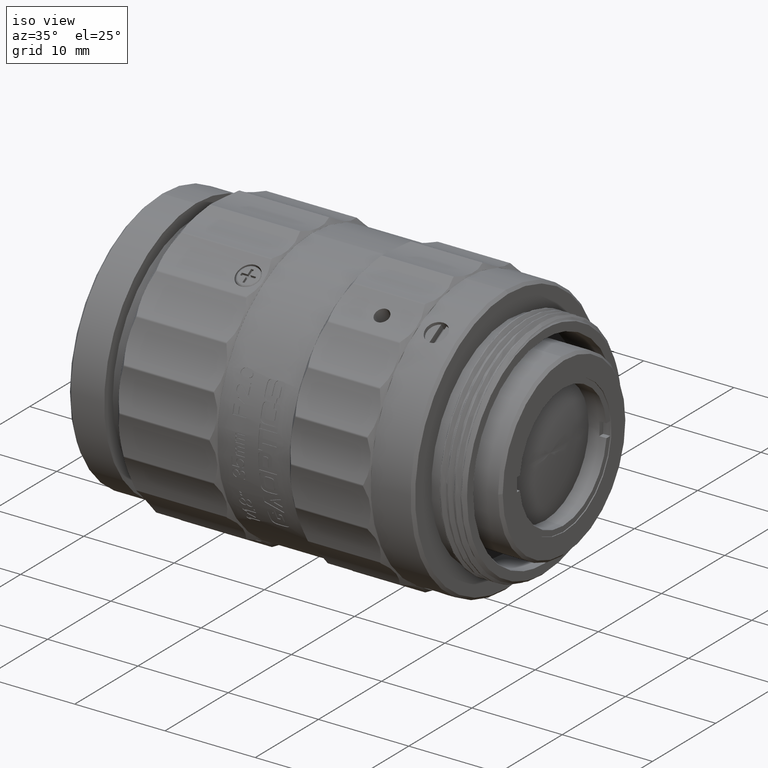
[diagram: clean part render]
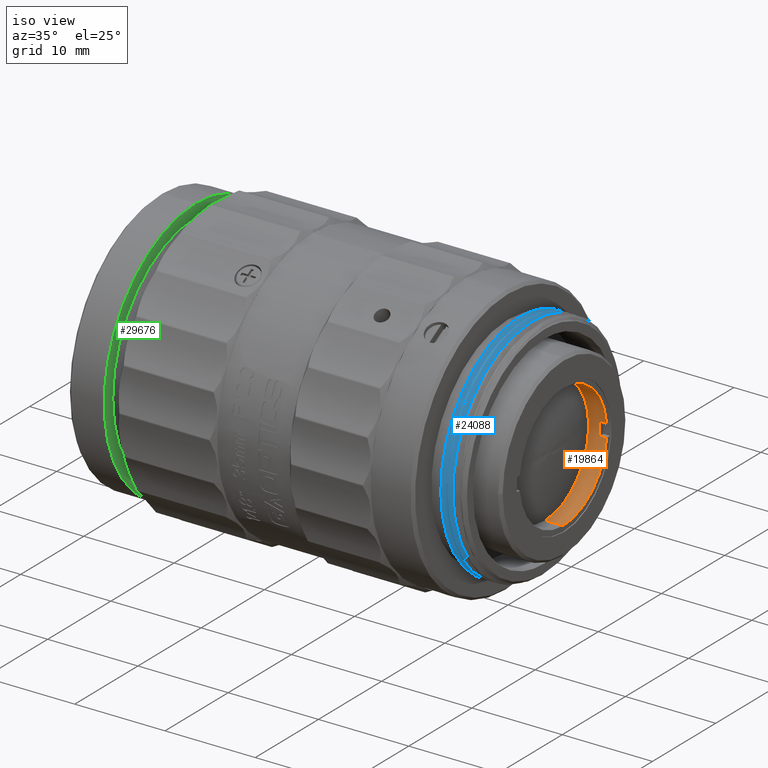
[diagram: same view with three faces highlighted in distinct colors, each labeled with its STEP entity id]
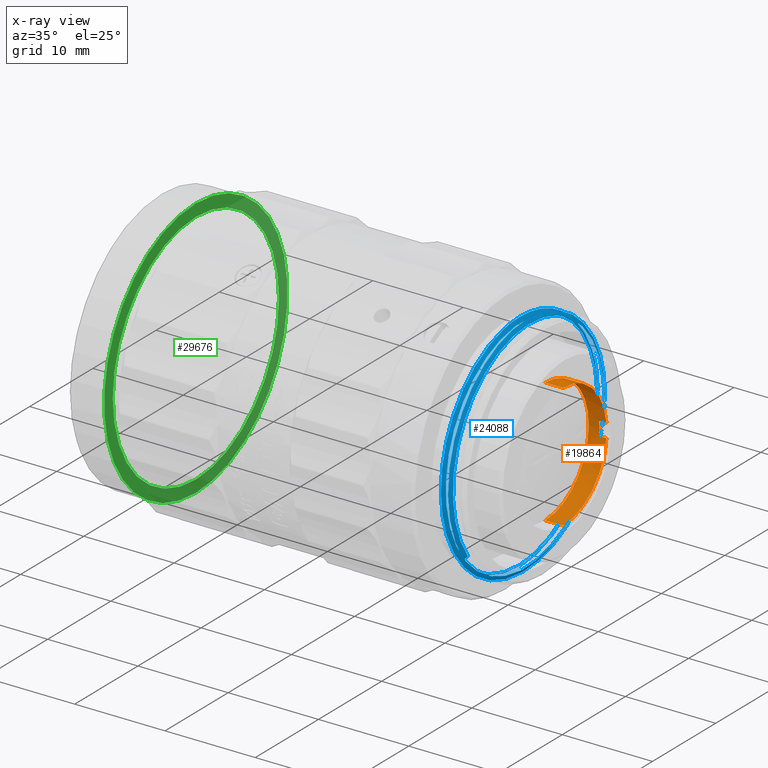
[diagram: x-ray of the same camera — body ghosted, the three highlighted faces saturated]
A machine part, iso view with three faces highlighted in distinct colors.
The next image is the same camera in x-ray (body ghosted, the three faces saturated) — at least one of them is partly hidden behind the body in this view.
Their STEP definitions:

[orange] entity #19864 — the highlighted cylindrical surface (partial cylindrical patch) has radius 6.9 mm, axis along (1, -0, 0).
#409 = CARTESIAN_POINT ( 'NONE',  ( 6.099999999999999645, 6.859118019104204933, 0.7500000000000109912 ) ) ;
#1989 = CIRCLE ( 'NONE', #14489, 6.900000000000001243 ) ;
#4546 = EDGE_CURVE ( 'NONE', #49021, #65725, #36204, .T. ) ;
#4587 = EDGE_CURVE ( 'NONE', #73823, #8742, #46218, .T. ) ;
#5099 = CARTESIAN_POINT ( 'NONE',  ( 4.099999999999999645, 8.450062914116738633E-16, 6.900000000000001243 ) ) ;
#6017 = DIRECTION ( 'NONE',  ( -1.000000000000000000, 0.000000000000000000, -0.000000000000000000 ) ) ;
#7153 = DIRECTION ( 'NONE',  ( -1.000000000000000000, 0.000000000000000000, -0.000000000000000000 ) ) ;
#7229 = CARTESIAN_POINT ( 'NONE',  ( 5.299999999999999822, 0.000000000000000000, 0.000000000000000000 ) ) ;
#7729 = DIRECTION ( 'NONE',  ( 1.000000000000000000, -0.000000000000000000, 0.000000000000000000 ) ) ;
#8439 = CIRCLE ( 'NONE', #57199, 6.900000000000073186 ) ;
#8742 = VERTEX_POINT ( 'NONE', #65185 ) ;
#11123 = DIRECTION ( 'NONE',  ( 0.000000000000000000, -1.776356839400250465E-15, -1.000000000000000000 ) ) ;
#12277 = EDGE_CURVE ( 'NONE', #37044, #44721, #20781, .T. ) ;
#12364 = CARTESIAN_POINT ( 'NONE',  ( 5.299999999999999822, 6.859118019104204933, 0.7500000000000109912 ) ) ;
#14489 = AXIS2_PLACEMENT_3D ( 'NONE', #7229, #31122, #53451 ) ;
#14518 = CIRCLE ( 'NONE', #24550, 6.900000000000001243 ) ;
#15675 = CARTESIAN_POINT ( 'NONE',  ( 6.099999999999999645, 8.450062914116738633E-16, 6.900000000000001243 ) ) ;
#16380 = CARTESIAN_POINT ( 'NONE',  ( 6.099999999999999645, 0.000000000000000000, -6.900000000000001243 ) ) ;
#17411 = AXIS2_PLACEMENT_3D ( 'NONE', #25987, #36164, #25214 ) ;
#18951 = ORIENTED_EDGE ( 'NONE', *, *, #42799, .F. ) ;
#19864 = ADVANCED_FACE ( 'NONE', ( #46336 ), #65092, .F. ) ;
#20781 = LINE ( 'NONE', #26289, #32112 ) ;
#22066 = DIRECTION ( 'NONE',  ( 1.000000000000000000, -0.000000000000000000, 0.000000000000000000 ) ) ;
#22907 = ORIENTED_EDGE ( 'NONE', *, *, #37177, .F. ) ;
#23371 = VERTEX_POINT ( 'NONE', #60708 ) ;
#23622 = DIRECTION ( 'NONE',  ( 0.000000000000000000, 0.000000000000000000, -1.000000000000000000 ) ) ;
#23733 = EDGE_CURVE ( 'NONE', #8742, #65725, #43372, .T. ) ;
#23846 = VECTOR ( 'NONE', #39600, 1000.000000000000000 ) ;
#24550 = AXIS2_PLACEMENT_3D ( 'NONE', #61549, #7153, #25563 ) ;
#25044 = ORIENTED_EDGE ( 'NONE', *, *, #31496, .F. ) ;
#25214 = DIRECTION ( 'NONE',  ( -5.028183988338518183E-16, -1.000000000000000000, 0.000000000000000000 ) ) ;
#25563 = DIRECTION ( 'NONE',  ( 0.000000000000000000, 0.000000000000000000, -1.000000000000000000 ) ) ;
#25987 = CARTESIAN_POINT ( 'NONE',  ( 4.100000000000457057, 0.000000000000000000, 0.000000000000000000 ) ) ;
#26289 = CARTESIAN_POINT ( 'NONE',  ( 5.099999999999999645, 6.859118019104203157, 0.7500000000000218714 ) ) ;
#26673 = DIRECTION ( 'NONE',  ( -1.000000000000000000, -0.000000000000000000, -0.000000000000000000 ) ) ;
#27454 = LINE ( 'NONE', #5099, #23846 ) ;
#29101 = ORIENTED_EDGE ( 'NONE', *, *, #63841, .T. ) ;
#31122 = DIRECTION ( 'NONE',  ( -1.000000000000000000, 0.000000000000000000, -0.000000000000000000 ) ) ;
#31496 = EDGE_CURVE ( 'NONE', #51234, #37044, #14518, .T. ) ;
#31961 = VECTOR ( 'NONE', #59023, 1000.000000000000000 ) ;
#32112 = VECTOR ( 'NONE', #26673, 1000.000000000000000 ) ;
#33365 = AXIS2_PLACEMENT_3D ( 'NONE', #76862, #22066, #23622 ) ;
#34644 = CARTESIAN_POINT ( 'NONE',  ( 6.099999999999999645, 6.859118019104204933, -0.7500000000000117684 ) ) ;
#35134 = CARTESIAN_POINT ( 'NONE',  ( 5.099999999999999645, 6.859118019104203157, -0.7500000000000235367 ) ) ;
#36164 = DIRECTION ( 'NONE',  ( -1.000000000000000000, -0.000000000000000000, -0.000000000000000000 ) ) ;
#36204 = CIRCLE ( 'NONE', #74968, 6.900000000000001243 ) ;
#37044 = VERTEX_POINT ( 'NONE', #409 ) ;
#37177 = EDGE_CURVE ( 'NONE', #23371, #49021, #72306, .T. ) ;
#37457 = ORIENTED_EDGE ( 'NONE', *, *, #59466, .F. ) ;
#39600 = DIRECTION ( 'NONE',  ( 1.000000000000000000, -0.000000000000000000, 0.000000000000000000 ) ) ;
#41332 = DIRECTION ( 'NONE',  ( -1.000000000000000000, -0.000000000000000000, -0.000000000000000000 ) ) ;
#42403 = EDGE_LOOP ( 'NONE', ( #18951, #29101, #61014, #74935, #50491, #22907, #37457, #47820, #25044 ) ) ;
#42799 = EDGE_CURVE ( 'NONE', #54396, #51234, #27454, .T. ) ;
#43372 = LINE ( 'NONE', #67244, #56384 ) ;
#44721 = VERTEX_POINT ( 'NONE', #12364 ) ;
#46218 = CIRCLE ( 'NONE', #17411, 6.900000000000073186 ) ;
#46336 = FACE_OUTER_BOUND ( 'NONE', #42403, .T. ) ;
#47820 = ORIENTED_EDGE ( 'NONE', *, *, #12277, .F. ) ;
#49021 = VERTEX_POINT ( 'NONE', #34644 ) ;
#50491 = ORIENTED_EDGE ( 'NONE', *, *, #4546, .F. ) ;
#51234 = VERTEX_POINT ( 'NONE', #15675 ) ;
#53451 = DIRECTION ( 'NONE',  ( 0.000000000000000000, 4.440892098500626162E-15, -1.000000000000000000 ) ) ;
#54236 = DIRECTION ( 'NONE',  ( -5.028183988338518183E-16, -1.000000000000000000, 0.000000000000000000 ) ) ;
#54396 = VERTEX_POINT ( 'NONE', #68151 ) ;
#56384 = VECTOR ( 'NONE', #7729, 1000.000000000000000 ) ;
#57199 = AXIS2_PLACEMENT_3D ( 'NONE', #66365, #41332, #54236 ) ;
#58266 = CARTESIAN_POINT ( 'NONE',  ( 4.100000000000457057, 6.900000000000073186, -8.450062914116825408E-16 ) ) ;
#59023 = DIRECTION ( 'NONE',  ( 1.000000000000000000, 0.000000000000000000, 0.000000000000000000 ) ) ;
#59466 = EDGE_CURVE ( 'NONE', #44721, #23371, #1989, .T. ) ;
#60708 = CARTESIAN_POINT ( 'NONE',  ( 5.300000000000000711, 6.859118019104204933, -0.7500000000000117684 ) ) ;
#61014 = ORIENTED_EDGE ( 'NONE', *, *, #4587, .T. ) ;
#61549 = CARTESIAN_POINT ( 'NONE',  ( 6.099999999999999645, 0.000000000000000000, 0.000000000000000000 ) ) ;
#63841 = EDGE_CURVE ( 'NONE', #54396, #73823, #8439, .T. ) ;
#65092 = CYLINDRICAL_SURFACE ( 'NONE', #33365, 6.900000000000001243 ) ;
#65185 = CARTESIAN_POINT ( 'NONE',  ( 4.100000000000457057, 0.000000000000000000, -6.900000000000072298 ) ) ;
#65725 = VERTEX_POINT ( 'NONE', #16380 ) ;
#66365 = CARTESIAN_POINT ( 'NONE',  ( 4.100000000000457057, 0.000000000000000000, 0.000000000000000000 ) ) ;
#67244 = CARTESIAN_POINT ( 'NONE',  ( 4.099999999999999645, 0.000000000000000000, -6.900000000000001243 ) ) ;
#68151 = CARTESIAN_POINT ( 'NONE',  ( 4.100000000000457057, 8.450062914116825408E-16, 6.900000000000072298 ) ) ;
#70637 = CARTESIAN_POINT ( 'NONE',  ( 6.099999999999999645, 0.000000000000000000, 0.000000000000000000 ) ) ;
#72306 = LINE ( 'NONE', #35134, #31961 ) ;
#73823 = VERTEX_POINT ( 'NONE', #58266 ) ;
#74935 = ORIENTED_EDGE ( 'NONE', *, *, #23733, .T. ) ;
#74968 = AXIS2_PLACEMENT_3D ( 'NONE', #70637, #6017, #11123 ) ;
#76862 = CARTESIAN_POINT ( 'NONE',  ( 4.099999999999999645, 0.000000000000000000, 0.000000000000000000 ) ) ;

[blue] entity #24088 — the highlighted face is a freeform B-spline surface patch.
#4 = CARTESIAN_POINT ( 'NONE',  ( 1.147177800774000112, 2.475392689828999959, -12.31298199855999975 ) ) ;
#821 = CARTESIAN_POINT ( 'NONE',  ( 2.005554517069075171, 3.324198125848132346, 12.36945299433578604 ) ) ;
#1213 = CARTESIAN_POINT ( 'NONE',  ( 1.244785915738939153, -1.291658214993352059E-06, 12.69990260965797901 ) ) ;
#1254 = CARTESIAN_POINT ( 'NONE',  ( 0.6946685632918000453, -10.78043694788000195, -6.798454218829999007 ) ) ;
#1638 = CARTESIAN_POINT ( 'NONE',  ( 2.269707254204000435, -11.70889297097999915, -5.859656244205999620 ) ) ;
#2025 = CARTESIAN_POINT ( 'NONE',  ( 2.237046959761878728, -12.69997868697718424, -6.665826899113979130E-07 ) ) ;
#2071 = EDGE_CURVE ( 'NONE', #71857, #61550, #17913, .T. ) ;
#2420 = CARTESIAN_POINT ( 'NONE',  ( 1.456784058894999845, -12.46029294280999800, -4.021946059873999779 ) ) ;
#2439 = CARTESIAN_POINT ( 'NONE',  ( 1.020029718032617883, 12.47229344561765885, -2.609337535754476356 ) ) ;
#2818 = CARTESIAN_POINT ( 'NONE',  ( 0.8978993621191998509, 7.399307099672000732, -10.80209534890000356 ) ) ;
#3131 = CARTESIAN_POINT ( 'NONE',  ( 2.187791431660296215, 8.870203314956022211, 8.957489581333527795 ) ) ;
#3200 = CARTESIAN_POINT ( 'NONE',  ( 1.912466669629999894, 12.91404881849999953, -0.1817822703328999812 ) ) ;
#3221 = CARTESIAN_POINT ( 'NONE',  ( 1.193597821671151582, 5.009681758521558947, 11.71510882892911631 ) ) ;
#3233 = CARTESIAN_POINT ( 'NONE',  ( 1.000000000000000888, 10.65908170437654157, -6.842019221050800404 ) ) ;
#3590 = CARTESIAN_POINT ( 'NONE',  ( 1.302774273146999784, 1.647423259653999716, 12.80982819104000292 ) ) ;
#3605 = CARTESIAN_POINT ( 'NONE',  ( 0.9998049705669811438, 11.84968986089272036, -4.568587304648058733 ) ) ;
#3724 = EDGE_CURVE ( 'NONE', #40749, #52172, #57710, .T. ) ;
#3887 = CARTESIAN_POINT ( 'NONE',  ( 1.628906734885056107, -11.11013661578270018, 5.956676157787573089 ) ) ;
#3963 = CARTESIAN_POINT ( 'NONE',  ( 0.9979280749064002309, 7.298721885107000595, -10.65525307517999742 ) ) ;
#3993 = CARTESIAN_POINT ( 'NONE',  ( 0.9999999999999997780, -7.702236336425961838, -9.588883838049799380 ) ) ;
#4031 = ORIENTED_EDGE ( 'NONE', *, *, #2071, .F. ) ;
#4348 = CARTESIAN_POINT ( 'NONE',  ( 1.250379886813999919, 12.38326647156999627, 2.982368902152999546 ) ) ;
#4668 = CARTESIAN_POINT ( 'NONE',  ( 1.171637437523284087, 7.124046104247398148, -10.40024751666454250 ) ) ;
#5128 = CARTESIAN_POINT ( 'NONE',  ( 1.502831698721999620, 1.602016289919000025, 12.45675834194999965 ) ) ;
#5442 = CARTESIAN_POINT ( 'NONE',  ( 1.244785915738939153, -1.291658214993352059E-06, 12.69990260965797901 ) ) ;
#5909 = CARTESIAN_POINT ( 'NONE',  ( 2.503636479582999730, -9.297404040550999227, -8.369311849339000631 ) ) ;
#6066 = CARTESIAN_POINT ( 'NONE',  ( 1.774054426702104115, 11.09708715539147583, -6.395961011758967807 ) ) ;
#6287 = CARTESIAN_POINT ( 'NONE',  ( 1.248793200187999775, 10.58704769634000087, -6.756603619484001122 ) ) ;
#7164 = CARTESIAN_POINT ( 'NONE',  ( 2.301944726157207910, -11.10545867117006580, -6.298705533398297085 ) ) ;
#7545 = CARTESIAN_POINT ( 'NONE',  ( 2.315060934631746115, -10.34590657212173070, -7.365467494087316602 ) ) ;
#7547 = CARTESIAN_POINT ( 'NONE',  ( 2.168091854791000639, -12.34214369949000023, 4.371067696134001146 ) ) ;
#8705 = CARTESIAN_POINT ( 'NONE',  ( 1.863245656548999873, 12.11951705170999816, 4.955023390468000777 ) ) ;
#8711 = CARTESIAN_POINT ( 'NONE',  ( 2.121281526093960146, -7.804743701787794308, 10.15576863780623995 ) ) ;
#9092 = CARTESIAN_POINT ( 'NONE',  ( 0.9116618887685000727, -9.600708794982999450, -8.019569399828002432 ) ) ;
#9120 = CARTESIAN_POINT ( 'NONE',  ( 1.000000000000001110, 9.757110041621942287, -8.082365128635203178 ) ) ;
#9484 = CARTESIAN_POINT ( 'NONE',  ( 1.251966573440999930, 6.530119942418999734, 11.14285579513000357 ) ) ;
#9799 = CARTESIAN_POINT ( 'NONE',  ( 1.679714434591297101, -12.55525678372343279, 1.132542963625205568 ) ) ;
#9875 = CARTESIAN_POINT ( 'NONE',  ( 1.353581972853999948, -3.498175846769000064, 12.43255675424000017 ) ) ;
#9901 = EDGE_CURVE ( 'NONE', #41549, #40749, #18824, .T. ) ;
#10241 = CARTESIAN_POINT ( 'NONE',  ( 2.268120567578000735, -12.17436620957999871, 4.311647972607000057 ) ) ;
#10625 = CARTESIAN_POINT ( 'NONE',  ( 1.099543474320000103, 12.73811542141999986, -2.132163211461000074 ) ) ;
#11016 = CARTESIAN_POINT ( 'NONE',  ( 2.418956980071999663, -12.71303871806000174, -0.7867793655220001181 ) ) ;
#11171 = CARTESIAN_POINT ( 'NONE',  ( 1.658246779297415152, 1.662426118072004577, -12.70000000000974083 ) ) ;
#11332 = CARTESIAN_POINT ( 'NONE',  ( 1.310823326839235081, -6.395625943557774917, 11.09614930169126801 ) ) ;
#11398 = CARTESIAN_POINT ( 'NONE',  ( 2.366562593738999354, -5.190518712031000348, 11.43659857192999851 ) ) ;
#11871 = ORIENTED_EDGE ( 'NONE', *, *, #55632, .T. ) ;
#12177 = CARTESIAN_POINT ( 'NONE',  ( 2.163331794911000916, 11.62526365473999945, 4.752949567477998905 ) ) ;
#12339 = CARTESIAN_POINT ( 'NONE',  ( 1.724422577814380464, 7.804743366620149558, -10.15576888174864578 ) ) ;
#12560 = CARTESIAN_POINT ( 'NONE',  ( 1.858485596670000239, -5.510369281559000854, -11.28596982891999900 ) ) ;
#12599 = CARTESIAN_POINT ( 'NONE',  ( 2.038619319742849711, 1.357859377813513809E-08, 12.70002529242971789 ) ) ;
#13287 = CARTESIAN_POINT ( 'NONE',  ( 0.9998049705669811438, 11.84968986089272036, -4.568587304648058733 ) ) ;
#13377 = CARTESIAN_POINT ( 'NONE',  ( 1.972489658699074555, 6.395961034888292929, 11.09708714028891130 ) ) ;
#13420 = CARTESIAN_POINT ( 'NONE',  ( 2.015668755669999701, -0.3124754668240000699, 13.08958793245000152 ) ) ;
#14188 = CARTESIAN_POINT ( 'NONE',  ( 0.7962839627055000591, -2.649838656177999852, -12.82239834743000451 ) ) ;
#14608 = CARTESIAN_POINT ( 'NONE',  ( 1.000000000000000666, -3.705595848142310800, -11.81277604031982165 ) ) ;
#14900 = CARTESIAN_POINT ( 'NONE',  ( 1.558983089257306665, -7.804742730777681992, -10.15576934494842121 ) ) ;
#14951 = CARTESIAN_POINT ( 'NONE',  ( 1.861658969923000395, 11.81245593814000117, -5.222220448407999704 ) ) ;
#15341 = CARTESIAN_POINT ( 'NONE',  ( 0.9963413882799001531, -2.577795534807999722, -12.47378632963999756 ) ) ;
#15371 = CARTESIAN_POINT ( 'NONE',  ( 0.9998049705669811438, 11.84968986089272036, -4.568587304648058733 ) ) ;
#15648 = CARTESIAN_POINT ( 'NONE',  ( 1.781329834005296542, -9.523769569180316807, -8.259233600216001392 ) ) ;
#15725 = CARTESIAN_POINT ( 'NONE',  ( 1.047149087986999794, 2.510473506973999847, -12.48747935078000282 ) ) ;
#15733 = CARTESIAN_POINT ( 'NONE',  ( 2.104749095962982874, -6.395961359774137378, 11.09708696728655752 ) ) ;
#15758 = CARTESIAN_POINT ( 'NONE',  ( 1.000000000000000000, -1.230123036845251816, -12.39582517420642205 ) ) ;
#16120 = CARTESIAN_POINT ( 'NONE',  ( 1.201158873733999988, 10.37071386440999987, 7.697661697988000817 ) ) ;
#16496 = CARTESIAN_POINT ( 'NONE',  ( 0.9471203751994998754, 2.545554324160999915, -12.66197670300000055 ) ) ;
#16878 = CARTESIAN_POINT ( 'NONE',  ( 2.266533880951000501, -5.264077803720999427, 11.59867597686000273 ) ) ;
#17036 = CARTESIAN_POINT ( 'NONE',  ( 1.823686275589828210, 12.70000000882097702, -1.662426050759095109 ) ) ;
#17112 = CARTESIAN_POINT ( 'NONE',  ( 2.563196402301346932, -9.995442160362960848, -7.115963252223607149 ) ) ;
#17204 = CARTESIAN_POINT ( 'NONE',  ( 1.277735295378532143, -3.293174524957086291, 12.29430586559373317 ) ) ;
#17269 = CARTESIAN_POINT ( 'NONE',  ( 1.401216299307999735, 10.08487190588000182, 7.485495522618999864 ) ) ;
#17292 = B_SPLINE_CURVE_WITH_KNOTS ( 'NONE', 3,
 ( #12599, #54499, #821, #13377, #66623, #20011, #67396, #49390, #73645, #49002 ),
 .UNSPECIFIED., .F., .F.,
 ( 4, 2, 2, 2, 4 ),
 ( 0.5000000143048558554, 0.6250000107286419748, 0.7500000071524279832, 0.8750000035762139916, 1.000000000000000000 ),
 .UNSPECIFIED. ) ;
#17653 = CARTESIAN_POINT ( 'NONE',  ( 1.706062497548999968, -12.50856321829000173, 1.128330985335000092 ) ) ;
#17913 = B_SPLINE_CURVE_WITH_KNOTS ( 'NONE', 3,
 ( #57963, #28197, #40333, #51329, #14900, #57203, #75962, #21557, #74796, #63429 ),
 .UNSPECIFIED., .F., .F.,
 ( 4, 2, 2, 2, 4 ),
 ( 0.5000000233781539682, 0.6250000175336154484, 0.7500000116890769286, 0.8750000058445385198, 1.000000000000000000 ),
 .UNSPECIFIED. ) ;
#18042 = CARTESIAN_POINT ( 'NONE',  ( 2.214139494617999748, 8.837214629336999749, 8.924176274161000677 ) ) ;
#18427 = CARTESIAN_POINT ( 'NONE',  ( 2.317341580657999778, -9.384115583429000651, 8.612679247291000095 ) ) ;
#18824 = B_SPLINE_CURVE_WITH_KNOTS ( 'NONE', 3,
 ( #7545, #7164, #66664, #55695, #60030, #2025 ),
 .UNSPECIFIED., .F., .F.,
 ( 4, 2, 4 ),
 ( 0.000000000000000000, 0.4999999999999998890, 1.000000000000000000 ),
 .UNSPECIFIED. ) ;
#19272 = CARTESIAN_POINT ( 'NONE',  ( 1.914053356256000260, 9.212932847854000684, 9.303591706811999984 ) ) ;
#19675 = CARTESIAN_POINT ( 'NONE',  ( 1.050322461240000171, 12.72934867925999924, 3.065718866135000553 ) ) ;
#19693 = CARTESIAN_POINT ( 'NONE',  ( 2.391022230487297229, -9.287524692030874718, 8.524028765687130971 ) ) ;
#20011 = CARTESIAN_POINT ( 'NONE',  ( 1.922892371144071744, 10.15576887553451613, 7.804743372187142647 ) ) ;
#20449 = CARTESIAN_POINT ( 'NONE',  ( 1.507591758600999698, -9.891751787847999466, -8.578356305077999622 ) ) ;
#20747 = ORIENTED_EDGE ( 'NONE', *, *, #3724, .F. ) ;
#20851 = CARTESIAN_POINT ( 'NONE',  ( 2.164918481538000261, 4.704628919362000339, 11.83664984299000089 ) ) ;
#20858 = CARTESIAN_POINT ( 'NONE',  ( 2.071684235701029220, -3.324198302143744677, 12.36945295974197734 ) ) ;
#20885 = CARTESIAN_POINT ( 'NONE',  ( 0.9999999999999993339, 11.43430524077597532, -5.508568259873443118 ) ) ;
#21058 = ORIENTED_EDGE ( 'NONE', *, *, #54860, .T. ) ;
#21161 = CARTESIAN_POINT ( 'NONE',  ( 2.563196402301346932, -9.995442160362960848, -7.115963252223607149 ) ) ;
#21232 = CARTESIAN_POINT ( 'NONE',  ( 2.403607766796000522, -9.427323966107998388, -8.486262814107002228 ) ) ;
#21557 = CARTESIAN_POINT ( 'NONE',  ( 1.476263348846439838, -12.36945258339394726, -3.324199583146277615 ) ) ;
#21613 = CARTESIAN_POINT ( 'NONE',  ( 1.607620471388999883, -9.757284605620000661, -8.461743249571000547 ) ) ;
#21630 = CARTESIAN_POINT ( 'NONE',  ( 1.040449494931364960, 12.72855835591476215, -0.5736648628361438185 ) ) ;
#21994 = CARTESIAN_POINT ( 'NONE',  ( 1.148764487399999812, 10.73708542001999788, -6.852356983034999516 ) ) ;
#22026 = CARTESIAN_POINT ( 'NONE',  ( 0.9999999999999991118, 6.181167064522894883, -10.93290008565985971 ) ) ;
#22313 = CARTESIAN_POINT ( 'NONE',  ( 1.029635891164851769, -6.230653014809448109, -10.76848237497617511 ) ) ;
#22389 = CARTESIAN_POINT ( 'NONE',  ( 1.404389672560999891, -8.085521999527001569, 10.07124797084999557 ) ) ;
#22695 = CARTESIAN_POINT ( 'NONE',  ( 1.425675936057296367, 6.373838634882506682, 10.87618074330762141 ) ) ;
#23075 = CARTESIAN_POINT ( 'NONE',  ( 1.070022038109268658, -2.551262233252971523, -12.34539339479604969 ) ) ;
#23557 = CARTESIAN_POINT ( 'NONE',  ( 1.452023999014999900, 6.350134041937998575, 10.83573173729000061 ) ) ;
#23862 = CARTESIAN_POINT ( 'NONE',  ( 1.476483635764275215, 1.607996501328583516, 12.50325852351225642 ) ) ;
#24088 = ADVANCED_FACE ( 'NONE', ( #38483 ), #37375, .F. ) ;
#24826 = CARTESIAN_POINT ( 'NONE',  ( 2.220476106879819334, -12.70000013874810207, 1.662425141485506463 ) ) ;
#25194 = CARTESIAN_POINT ( 'NONE',  ( 1.253553260067000075, -3.546384940581000400, 12.60389242210999861 ) ) ;
#25202 = CARTESIAN_POINT ( 'NONE',  ( 2.154346386355912912, -10.15576928485745967, 7.804742859825094747 ) ) ;
#25378 = ORIENTED_EDGE ( 'NONE', *, *, #49197, .T. ) ;
#25574 = CARTESIAN_POINT ( 'NONE',  ( 2.303579054008999982, -9.557243891663000923, -8.603213778878998852 ) ) ;
#25580 = CARTESIAN_POINT ( 'NONE',  ( 2.237046959761878728, -12.69997868697718424, -6.665826899113979130E-07 ) ) ;
#25969 = CARTESIAN_POINT ( 'NONE',  ( 1.101130160947000114, 10.51363484370000023, 7.803744785645000626 ) ) ;
#26369 = CARTESIAN_POINT ( 'NONE',  ( 1.050659383380757372, 12.73258813940245204, 0.4599421532218939679 ) ) ;
#26736 = CARTESIAN_POINT ( 'NONE',  ( 2.114110781831000541, 8.962454035529004770, 9.050648085025001066 ) ) ;
#26767 = CARTESIAN_POINT ( 'NONE',  ( 0.9999999999999995559, -6.463680439429655422, -10.49565971273443488 ) ) ;
#27045 = CARTESIAN_POINT ( 'NONE',  ( 2.136983731953297383, 11.66865992653031903, 4.770691985830498361 ) ) ;
#27119 = CARTESIAN_POINT ( 'NONE',  ( 2.369735966992000176, -11.54972380879000227, -5.780000842329999777 ) ) ;
#27149 = CARTESIAN_POINT ( 'NONE',  ( 0.9999999999999997780, 3.826740255460795659, -11.91532816476354029 ) ) ;
#27412 = CARTESIAN_POINT ( 'NONE',  ( 1.832137533712275612, -5.530939093146391095, -11.32809954130026142 ) ) ;
#27481 = CARTESIAN_POINT ( 'NONE',  ( 1.810851270216000009, 8.825783890334001569, -9.429275710059998872 ) ) ;
#27792 = CARTESIAN_POINT ( 'NONE',  ( 2.556474070105191121, -10.36296630413056619, -6.600873065258326733 ) ) ;
#27863 = CARTESIAN_POINT ( 'NONE',  ( 1.910879983002999882, 8.704153914460999175, -9.299328887168998747 ) ) ;
#28197 = CARTESIAN_POINT ( 'NONE',  ( 1.625158881586000970, -1.662425962763006027, -12.69999999999026130 ) ) ;
#28255 = CARTESIAN_POINT ( 'NONE',  ( 0.8116331759812999147, -9.734867035964999360, -8.131633138806000360 ) ) ;
#28309 = CARTESIAN_POINT ( 'NONE',  ( 1.641692927631839050, 9.839317292367886911E-08, -12.70001091620402356 ) ) ;
#28954 = VERTEX_POINT ( 'NONE', #58384 ) ;
#29018 = CARTESIAN_POINT ( 'NONE',  ( 1.960100996083999680, 4.308538152714000091, -11.79719388606999786 ) ) ;
#29182 = CARTESIAN_POINT ( 'NONE',  ( 1.707878628185139025, 6.395961070576071883, -11.09708712149142151 ) ) ;
#29331 = CARTESIAN_POINT ( 'NONE',  ( 1.222445137230055989, 10.62656838274566162, -6.781825534080963003 ) ) ;
#29345 = CARTESIAN_POINT ( 'NONE',  ( 1.410087421221380977, -12.36849799451404230, 3.323811736006779594 ) ) ;
#29808 = CARTESIAN_POINT ( 'NONE',  ( 2.112524095203999863, 12.55810639683999952, -0.1767719113325000313 ) ) ;
#30197 = CARTESIAN_POINT ( 'NONE',  ( 2.569793392566000367, -11.23138548440000051, -5.620690038572999647 ) ) ;
#30350 = CARTESIAN_POINT ( 'NONE',  ( 1.674790728926655925, 3.324198142522987176, -12.36945299144396415 ) ) ;
#31069 = CARTESIAN_POINT ( 'NONE',  ( 1.202745560360000132, 1.670126744559000009, 12.98636311556999878 ) ) ;
#31075 = CARTESIAN_POINT ( 'NONE',  ( 2.170878816486889296, -11.09708749754285861, 6.395960439771571693 ) ) ;
#31824 = CARTESIAN_POINT ( 'NONE',  ( 1.355168659480999960, -11.53941335252999956, 6.186831968707998897 ) ) ;
#32217 = CARTESIAN_POINT ( 'NONE',  ( 0.7116044631940999787, -9.869025276965002647, -8.243696877763001751 ) ) ;
#32246 = CARTESIAN_POINT ( 'NONE',  ( 0.9999999999999997780, -8.091974738483029839, -9.249763094411374453 ) ) ;
#32622 = CARTESIAN_POINT ( 'NONE',  ( 1.101708825627650157, 11.52909614709506059, 5.423015006385210945 ) ) ;
#32634 = CARTESIAN_POINT ( 'NONE',  ( 0.9999999999999993339, -6.887205532510873418, -10.21245886653067636 ) ) ;
#32837 = CARTESIAN_POINT ( 'NONE',  ( 1.443260967508228187, -12.69995936289207705, -9.740554952123322522E-07 ) ) ;
#32988 = CARTESIAN_POINT ( 'NONE',  ( 1.455197372267999834, -11.38254807415000158, 6.102728982741000507 ) ) ;
#33021 = CARTESIAN_POINT ( 'NONE',  ( 0.9999999999999993339, 7.476561583789368193, -10.12508162869501760 ) ) ;
#33298 = CARTESIAN_POINT ( 'NONE',  ( 1.882945233419275111, -0.6554591401537768203, -12.58918185528210998 ) ) ;
#33370 = CARTESIAN_POINT ( 'NONE',  ( 1.658428171095000181, -5.666553193651001408, -11.60585527224000302 ) ) ;
#33390 = CARTESIAN_POINT ( 'NONE',  ( 1.244785915738939153, -1.291658214993352059E-06, 12.69990260965797901 ) ) ;
#33685 = CARTESIAN_POINT ( 'NONE',  ( 1.578099035178056386, -7.892016219846938796, 9.830219044049766097 ) ) ;
#33762 = CARTESIAN_POINT ( 'NONE',  ( 1.809264583590000086, -0.6622759600113999889, -12.72011020678000293 ) ) ;
#34138 = CARTESIAN_POINT ( 'NONE',  ( 0.8963126754927002171, -2.613817095476000052, -12.64809233853999793 ) ) ;
#34536 = CARTESIAN_POINT ( 'NONE',  ( 1.709235870802000123, -0.6715304618349000609, -12.89785829258000227 ) ) ;
#34919 = CARTESIAN_POINT ( 'NONE',  ( 0.9947547016535001063, -10.34079339115000096, -6.521202321929001400 ) ) ;
#35198 = CARTESIAN_POINT ( 'NONE',  ( 2.038619319742849711, 1.357859377813513809E-08, 12.70002529242971789 ) ) ;
#35209 = CARTESIAN_POINT ( 'NONE',  ( 1.120829737816286142, 2.484633152423014302, -12.35894547338782701 ) ) ;
#35286 = CARTESIAN_POINT ( 'NONE',  ( 1.197985500481000276, 7.097551455938999609, -10.36156852775000026 ) ) ;
#36060 = CARTESIAN_POINT ( 'NONE',  ( 2.603665192370999915, -9.167484114997002109, -8.252360884567000454 ) ) ;
#36213 = CARTESIAN_POINT ( 'NONE',  ( 1.757510477072863342, 10.15576892311557167, -7.804743312792249199 ) ) ;
#36746 = CARTESIAN_POINT ( 'NONE',  ( 2.480302396876826077, -10.11249052245327817, -7.199295341009594118 ) ) ;
#37321 = CARTESIAN_POINT ( 'NONE',  ( 2.066476455376999866, -5.411195987154000520, 11.92283078670000229 ) ) ;
#37339 = CARTESIAN_POINT ( 'NONE',  ( 2.533023799954400079, -11.54178345010156015, -4.644188975960465982 ) ) ;
#37375 = B_SPLINE_SURFACE_WITH_KNOTS ( 'NONE', 3, 3, ( 
 ( #1254, #32217, #43952, #14188, #38078, #2818, #61945, #48674, #19675, #25969, #43567, #31069, #25194, #72542, #31824, #67440, #2420, #20449, #44333, #42803, #55696, #49051, #68215, #67054, #8705, #19272, #66666, #13420, #37321, #61176, #7547, #55302, #1638, #25574, #68995 ),
 ( #62718, #28255, #40013, #34138, #16496, #3963, #68615, #10625, #74468, #16120, #9484, #3590, #9875, #22389, #32988, #45885, #63092, #21613, #33370, #34536, #38859, #27481, #14951, #3200, #69772, #63867, #46267, #57262, #58418, #51383, #10241, #75232, #27119, #21232, #69375 ),
 ( #45487, #9092, #75624, #15341, #15725, #39632, #21994, #58019, #4348, #56863, #70148, #52160, #51004, #74855, #50602, #45103, #39246, #63486, #40395, #33762, #57633, #27863, #51768, #76021, #64250, #26736, #20851, #44725, #16878, #18427, #72081, #11016, #65799, #5909, #47809 ),
 ( #34919, #47041, #58794, #76400, #4, #35286, #6287, #59559, #70926, #17269, #23557, #5128, #65026, #46656, #71690, #17653, #41168, #70528, #12560, #41935, #29018, #40780, #52912, #29808, #12177, #18042, #41547, #42336, #11398, #64645, #59172, #76791, #30197, #36060, #59944 ) ),
 .UNSPECIFIED., .F., .F., .F.,
 ( 4, 4 ),
 ( 4, 1, 1, 1, 1, 1, 1, 1, 1, 1, 1, 1, 1, 1, 1, 1, 1, 1, 1, 1, 1, 1, 1, 1, 1, 1, 1, 1, 1, 1, 1, 1, 4 ),
 ( -0.09284549768191999175, 1.103759664633000126 ),
 ( 0.2268824629372999946, 0.2515161099516000087, 0.2761497569658000195, 0.3007834039801000614, 0.3254170509943000167, 0.3500506980086000031, 0.3746843450227999583, 0.3993179920371000002, 0.4239516390513000665, 0.4485852860655999419, 0.4732189330798000082, 0.4978525800941000501, 0.5224862271082999499, 0.5471198741226001028, 0.5717535211367998915, 0.5963871681511000444, 0.6210208151653001662, 0.6456544621795999861, 0.6702881091937999969, 0.6949217562081000388, 0.7195554032222999385, 0.7441890502366000915, 0.7688226972507999912, 0.7934563442651001441, 0.8180899912793000439, 0.8427236382936000858, 0.8673572853078002076, 0.8919909323221001385, 0.9166245793363000383, 0.9412582263506004132, 0.9658918733647999799, 0.9905255203791001328, 1.015159167393000050 ),
 .UNSPECIFIED. ) ;
#37723 = CARTESIAN_POINT ( 'NONE',  ( 2.289406831074056736, -0.3008510934671614345, 12.60264328274700141 ) ) ;
#38050 = EDGE_CURVE ( 'NONE', #28954, #71857, #63365, .T. ) ;
#38078 = CARTESIAN_POINT ( 'NONE',  ( 0.8470916624123001615, 2.580635141307000335, -12.83647405522000007 ) ) ;
#38483 = FACE_OUTER_BOUND ( 'NONE', #55626, .T. ) ;
#38516 = CARTESIAN_POINT ( 'NONE',  ( 0.9999999999999995559, -5.132005073932942807, -11.23616283966840612 ) ) ;
#38859 = CARTESIAN_POINT ( 'NONE',  ( 1.760043570509000288, 4.430657798480001297, -12.13156927894999981 ) ) ;
#38878 = CARTESIAN_POINT ( 'NONE',  ( 1.162968156323315183, 7.733430013252413637, 10.28234390364518980 ) ) ;
#38890 = CARTESIAN_POINT ( 'NONE',  ( 0.9999999999999997780, -5.586066358920146691, -11.00748696676846983 ) ) ;
#39176 = CARTESIAN_POINT ( 'NONE',  ( 2.238599131367275508, 4.656204078780925570, 11.71481496687569646 ) ) ;
#39246 = CARTESIAN_POINT ( 'NONE',  ( 1.656841484469000036, -12.12152575224000017, -3.912598440642000241 ) ) ;
#39263 = CARTESIAN_POINT ( 'NONE',  ( 1.234437375468460329, 1.025985760419861004, 12.70027232302933129 ) ) ;
#39553 = CARTESIAN_POINT ( 'NONE',  ( 1.984560632833055616, 8.614561882272271376, -9.203610706936768082 ) ) ;
#39567 = CARTESIAN_POINT ( 'NONE',  ( 1.376999389760671155, -11.09779472636086872, 6.396248108155051071 ) ) ;
#39632 = CARTESIAN_POINT ( 'NONE',  ( 1.097956787693999736, 7.198136670502998768, -10.50841080148000017 ) ) ;
#40013 = CARTESIAN_POINT ( 'NONE',  ( 0.8455049757859003368, -7.356161838281999543, -10.61562116908999975 ) ) ;
#40333 = CARTESIAN_POINT ( 'NONE',  ( 1.608614933503826894, -3.324197832057229629, -12.36945305398614359 ) ) ;
#40395 = CARTESIAN_POINT ( 'NONE',  ( 1.758456883883000366, -5.588461237648999713, -11.44591255055999746 ) ) ;
#40749 = VERTEX_POINT ( 'NONE', #72244 ) ;
#40780 = CARTESIAN_POINT ( 'NONE',  ( 2.010908695790999623, 8.582523938657001139, -9.169382064210999772 ) ) ;
#41168 = CARTESIAN_POINT ( 'NONE',  ( 1.756870197256000132, -11.95214215692999993, -3.857924631072000121 ) ) ;
#41469 = CARTESIAN_POINT ( 'NONE',  ( 0.9998445743138484332, -8.459121364172180080, -8.888334342408587219 ) ) ;
#41547 = CARTESIAN_POINT ( 'NONE',  ( 2.264947194324999913, 4.638887446107998969, 11.67124704241000011 ) ) ;
#41549 = VERTEX_POINT ( 'NONE', #71967 ) ;
#41935 = CARTESIAN_POINT ( 'NONE',  ( 1.909293296376999516, -0.6530214580895999932, -12.54236212097999825 ) ) ;
#42226 = ORIENTED_EDGE ( 'NONE', *, *, #51030, .F. ) ;
#42336 = CARTESIAN_POINT ( 'NONE',  ( 2.315754894031999633, -0.2997322147022999927, 12.55577348478999866 ) ) ;
#42624 = CARTESIAN_POINT ( 'NONE',  ( 2.315060934631746115, -10.34590657212173070, -7.365467494087316602 ) ) ;
#42803 = CARTESIAN_POINT ( 'NONE',  ( 1.609207158015000028, -0.6807849637548999411, -13.07560637837999806 ) ) ;
#43567 = CARTESIAN_POINT ( 'NONE',  ( 1.151937860653000190, 6.620112892689999029, 11.29641782401999706 ) ) ;
#43952 = CARTESIAN_POINT ( 'NONE',  ( 0.7454762629986000366, -7.457538644877999445, -10.76191726721000208 ) ) ;
#44333 = CARTESIAN_POINT ( 'NONE',  ( 1.558399458307999863, -5.744645149740000178, -11.76579799387999969 ) ) ;
#44725 = CARTESIAN_POINT ( 'NONE',  ( 2.215726181243999893, -0.3039799653870000062, 12.73371163401000317 ) ) ;
#45033 = CARTESIAN_POINT ( 'NONE',  ( 2.441829930194297393, -11.88300465924549343, 4.208459977780576899 ) ) ;
#45103 = CARTESIAN_POINT ( 'NONE',  ( 1.606033784762000094, -12.68583231216000229, 1.144321487844999874 ) ) ;
#45487 = CARTESIAN_POINT ( 'NONE',  ( 0.8947259888663001703, -10.48734124340000307, -6.613619620889000572 ) ) ;
#45508 = CARTESIAN_POINT ( 'NONE',  ( 1.224227487019111882, 2.051687918449634829, 12.57551798042217506 ) ) ;
#45885 = CARTESIAN_POINT ( 'NONE',  ( 1.506005071975000220, -12.86310140603000107, 1.160311990262000048 ) ) ;
#46193 = CARTESIAN_POINT ( 'NONE',  ( 1.006185644122999268, -8.000841091444765851, -9.324651999688571280 ) ) ;
#46267 = CARTESIAN_POINT ( 'NONE',  ( 2.064889768750000520, 4.770370392547000904, 12.00205264358999990 ) ) ;
#46656 = CARTESIAN_POINT ( 'NONE',  ( 1.604447098136000172, -7.862665456091998628, 9.793660016698000348 ) ) ;
#46979 = CARTESIAN_POINT ( 'NONE',  ( 1.261191279648173236, -1.662574051344364090, 12.61777923265159274 ) ) ;
#47041 = CARTESIAN_POINT ( 'NONE',  ( 1.011690601555999880, -9.466550553984003358, -7.907505660870999264 ) ) ;
#47365 = CARTESIAN_POINT ( 'NONE',  ( 1.327367342569580888, -7.805225914498110207, 10.15628607490411994 ) ) ;
#47497 = B_SPLINE_CURVE_WITH_KNOTS ( 'NONE', 3,
 ( #42624, #66873, #36746, #60626 ),
 .UNSPECIFIED., .F., .F.,
 ( 4, 4 ),
 ( 0.000000000000000000, 1.000000000000000000 ),
 .UNSPECIFIED. ) ;
#47725 = CARTESIAN_POINT ( 'NONE',  ( 1.273252836937056154, 12.43326201110856388, -2.081135472714731538 ) ) ;
#47809 = CARTESIAN_POINT ( 'NONE',  ( 2.520572379485999992, -8.031062302531998043, -9.445968935905000308 ) ) ;
#48674 = CARTESIAN_POINT ( 'NONE',  ( 0.9995147615328002777, 12.91366205725999805, -2.161546999137999414 ) ) ;
#49002 = CARTESIAN_POINT ( 'NONE',  ( 1.840232764895992412, 12.69999859128366282, 4.237829144992367286E-08 ) ) ;
#49051 = CARTESIAN_POINT ( 'NONE',  ( 1.710822557428999913, 8.947413866137999605, -9.559222533017001311 ) ) ;
#49197 = EDGE_CURVE ( 'NONE', #51421, #61991, #59618, .T. ) ;
#49390 = CARTESIAN_POINT ( 'NONE',  ( 1.873295083589070931, 12.36945297854678039, 3.324198184599570727 ) ) ;
#49880 = EDGE_CURVE ( 'NONE', #59283, #51421, #50190, .T. ) ;
#50190 = B_SPLINE_CURVE_WITH_KNOTS ( 'NONE', 3,
 ( #51417, #32246, #3993, #32634, #26767, #38890, #38516, #69802, #14608, #57290, #15758, #63521, #69023, #56507, #62750, #57665, #27149, #74110, #51034, #22026, #56119, #33021, #50637, #75657, #9120, #3233, #74499, #20885, #68646, #15371 ),
 .UNSPECIFIED., .F., .F.,
 ( 4, 2, 2, 2, 2, 2, 2, 2, 2, 2, 2, 2, 2, 2, 4 ),
 ( 0.000000000000000000, 0.001543670742585511986, 0.003087341485171023973, 0.004631012227756536176, 0.006174682970342047945, 0.009262024455513074087, 0.01080569519809858672, 0.01234936594068409936, 0.01389303668326961026, 0.01543670742585512290, 0.01698037816844063380, 0.01852404891102614817, 0.02161139039619716998, 0.02315506113878268088, 0.02469873188136819178 ),
 .UNSPECIFIED. ) ;
#50602 = CARTESIAN_POINT ( 'NONE',  ( 1.555226085054999707, -11.22568279572000094, 6.018625996851000082 ) ) ;
#50637 = CARTESIAN_POINT ( 'NONE',  ( 0.9999999999999995559, 7.891184914380221294, -9.816506298617474258 ) ) ;
#50929 = CARTESIAN_POINT ( 'NONE',  ( 2.086176032246297662, 12.60498490339033140, -0.1774317881453756629 ) ) ;
#51004 = CARTESIAN_POINT ( 'NONE',  ( 1.453610685641999689, -3.449966752878000253, 12.26122108638000086 ) ) ;
#51030 = EDGE_CURVE ( 'NONE', #52172, #28954, #17292, .T. ) ;
#51034 = CARTESIAN_POINT ( 'NONE',  ( 0.9999999999999995559, 5.268800439529988111, -11.38062690784063058 ) ) ;
#51134 = B_SPLINE_CURVE_WITH_KNOTS ( 'NONE', 3,
 ( #21161, #27792, #37339, #61193, #45033, #19693, #67459, #37723, #39176, #3131, #27045, #50929, #63020, #39553, #51308, #33298, #27412, #15648, #63410, #9799, #3887, #33685, #57557, #23862, #22695, #64945, #64175, #47725, #29331, #4668, #35209, #23075, #22313, #46193, #41469 ),
 .UNSPECIFIED., .F., .F.,
 ( 4, 1, 1, 1, 1, 1, 1, 1, 1, 1, 1, 1, 1, 1, 1, 1, 1, 1, 1, 1, 1, 1, 1, 1, 1, 1, 1, 1, 1, 1, 1, 1, 4 ),
 ( 0.000000000000000000, 0.01250105317885541467, 0.04500098444516436452, 0.07750091571134060109, 0.1100008469776498493, 0.1425007782438265369, 0.1750007095101351884, 0.2075006407763121674, 0.2400005720426209577, 0.2725005033087976591, 0.3050004345751065604, 0.3375003658412832896, 0.3700002971075921909, 0.4025002283737689202, 0.4350001596400777104, 0.4675000909062545507, 0.5000000221725630078, 0.5324999534387400146, 0.5649998847050489159, 0.5974998159712254786, 0.6299997472375344909, 0.6624996785037111646, 0.6949996097700199549, 0.7274995410361968506, 0.7599994723025054189, 0.7924994035686824256, 0.8249993348349912159, 0.8574992661011678896, 0.8899991973674766799, 0.9224991286336533536, 0.9549990598999621438, 0.9874989911661389286, 1.000000000000000000 ),
 .UNSPECIFIED. ) ;
#51145 = CARTESIAN_POINT ( 'NONE',  ( 0.9998445743138484332, -8.459121364172180080, -8.888334342408587219 ) ) ;
#51308 = CARTESIAN_POINT ( 'NONE',  ( 1.933752933126056339, 4.324621615268612551, -11.84123196102907905 ) ) ;
#51329 = CARTESIAN_POINT ( 'NONE',  ( 1.575527037339480518, -6.395960519571049829, -11.09708741578210400 ) ) ;
#51383 = CARTESIAN_POINT ( 'NONE',  ( 2.217312867871000570, -9.515247197471000007, 8.733030975739001889 ) ) ;
#51417 = CARTESIAN_POINT ( 'NONE',  ( 0.9998445743138484332, -8.459121364172180080, -8.888334342408587219 ) ) ;
#51421 = VERTEX_POINT ( 'NONE', #13287 ) ;
#51768 = CARTESIAN_POINT ( 'NONE',  ( 1.961687682709999825, 11.64966600941999886, -5.150251935004999559 ) ) ;
#52160 = CARTESIAN_POINT ( 'NONE',  ( 1.402802985934999969, 1.624719774825000185, 12.63329326648999817 ) ) ;
#52172 = VERTEX_POINT ( 'NONE', #35198 ) ;
#52912 = CARTESIAN_POINT ( 'NONE',  ( 2.061716395497000143, 11.48687608075000099, -5.078283421516000651 ) ) ;
#53230 = CARTESIAN_POINT ( 'NONE',  ( 1.426631436951736998, -12.70080638204365897, 1.662387404241611133 ) ) ;
#53729 = ORIENTED_EDGE ( 'NONE', *, *, #38050, .F. ) ;
#53840 = CARTESIAN_POINT ( 'NONE',  ( 1.641692927631839050, 9.839317292367886911E-08, -12.70001091620402356 ) ) ;
#54499 = CARTESIAN_POINT ( 'NONE',  ( 2.022086946254075812, 1.662426113386045401, 12.69999999907508048 ) ) ;
#54860 = EDGE_CURVE ( 'NONE', #41549, #61630, #47497, .T. ) ;
#55302 = CARTESIAN_POINT ( 'NONE',  ( 2.218899554497000270, -13.06833725873000063, -0.8087679370029999815 ) ) ;
#55626 = EDGE_LOOP ( 'NONE', ( #53729, #42226, #20747, #71465, #21058, #11871, #71613, #25378, #57799, #4031 ) ) ;
#55632 = EDGE_CURVE ( 'NONE', #61630, #59283, #51134, .T. ) ;
#55695 = CARTESIAN_POINT ( 'NONE',  ( 2.262983012669360416, -12.49585233344299517, -2.618888725073268642 ) ) ;
#55696 = CARTESIAN_POINT ( 'NONE',  ( 1.660014857721999970, 4.491717621318001008, -12.29875697539999635 ) ) ;
#56108 = CARTESIAN_POINT ( 'NONE',  ( 1.009819829583268769, 12.21867876816187071, -3.611172258675976909 ) ) ;
#56119 = CARTESIAN_POINT ( 'NONE',  ( 0.9999999999999995559, 6.622858251533544127, -10.68204979430231560 ) ) ;
#56498 = CARTESIAN_POINT ( 'NONE',  ( 1.111918714076991721, 11.05211924241123711, 6.339986784811303622 ) ) ;
#56507 = CARTESIAN_POINT ( 'NONE',  ( 1.000000000000000000, 1.836893221639204654, -12.34344088358973579 ) ) ;
#56863 = CARTESIAN_POINT ( 'NONE',  ( 1.301187586521000306, 10.22779288516999685, 7.591578610275999672 ) ) ;
#57203 = CARTESIAN_POINT ( 'NONE',  ( 1.525895193092960511, -10.15576824006520873, -7.804744168485218125 ) ) ;
#57262 = CARTESIAN_POINT ( 'NONE',  ( 2.115697468457000241, -0.3082277161381000719, 12.91164978322999879 ) ) ;
#57268 = CARTESIAN_POINT ( 'NONE',  ( 2.055151805570054169, -1.662426194377353506, 12.70000000092492520 ) ) ;
#57290 = CARTESIAN_POINT ( 'NONE',  ( 1.000000000000000666, -2.233633302222651107, -12.23747970676410723 ) ) ;
#57557 = CARTESIAN_POINT ( 'NONE',  ( 1.527291335471275158, -3.414456175360227164, 12.13501608987563074 ) ) ;
#57633 = CARTESIAN_POINT ( 'NONE',  ( 1.860072283296000162, 4.369597975550999713, -11.96438158252000150 ) ) ;
#57665 = CARTESIAN_POINT ( 'NONE',  ( 0.9999999999999997780, 3.333211931958016905, -12.05357455204007167 ) ) ;
#57710 = B_SPLINE_CURVE_WITH_KNOTS ( 'NONE', 3,
 ( #25580, #24826, #60809, #31075, #25202, #8711, #15733, #20858, #57268, #69001 ),
 .UNSPECIFIED., .F., .F.,
 ( 4, 2, 2, 2, 4 ),
 ( 0.000000000000000000, 0.1250000035762139916, 0.2500000071524279277, 0.3750000107286418638, 0.5000000143048558554 ),
 .UNSPECIFIED. ) ;
#57799 = ORIENTED_EDGE ( 'NONE', *, *, #60952, .T. ) ;
#57963 = CARTESIAN_POINT ( 'NONE',  ( 1.641692927631839050, 9.839317292367886911E-08, -12.70001091620402356 ) ) ;
#58019 = CARTESIAN_POINT ( 'NONE',  ( 1.199572187106999976, 12.56256878557000078, -2.102779423839999495 ) ) ;
#58384 = CARTESIAN_POINT ( 'NONE',  ( 1.840232764895992412, 12.69999859128366282, 4.237829144992367286E-08 ) ) ;
#58418 = CARTESIAN_POINT ( 'NONE',  ( 2.166505168163999961, -5.337636895463000464, 11.76075338177000162 ) ) ;
#58794 = CARTESIAN_POINT ( 'NONE',  ( 1.045562401360000004, -7.153408225113000007, -10.32302897281999776 ) ) ;
#59112 = CARTESIAN_POINT ( 'NONE',  ( 1.360455374030304476, -10.15506096315594853, 7.804007371246076019 ) ) ;
#59172 = CARTESIAN_POINT ( 'NONE',  ( 2.468177993152000038, -11.83881122974000100, 4.192808525584998947 ) ) ;
#59283 = VERTEX_POINT ( 'NONE', #51145 ) ;
#59559 = CARTESIAN_POINT ( 'NONE',  ( 1.299600899894999939, 12.38702214973000082, -2.073395636162000066 ) ) ;
#59618 = B_SPLINE_CURVE_WITH_KNOTS ( 'NONE', 3,
 ( #3605, #56108, #2439, #21630, #26369, #62739, #68237, #32622, #56498, #74487, #38878, #3221, #74871, #45508, #39263, #33390 ),
 .UNSPECIFIED., .F., .F.,
 ( 4, 2, 2, 2, 2, 2, 2, 4 ),
 ( 0.000000000000000000, 0.06905330678466965744, 0.1381066135693393149, 0.2071599203540089862, 0.2762132271386786297, 0.4143198407080179724, 0.4833731474926876159, 0.5524264542773572595 ),
 .UNSPECIFIED. ) ;
#59944 = CARTESIAN_POINT ( 'NONE',  ( 2.620601092273000088, -7.918837964220999837, -9.313972996437000162 ) ) ;
#60030 = CARTESIAN_POINT ( 'NONE',  ( 2.249995774840078511, -12.69999989070385027, -1.309544374830778901 ) ) ;
#60626 = CARTESIAN_POINT ( 'NONE',  ( 2.563196402301346932, -9.995442160362960848, -7.115963252223607149 ) ) ;
#60809 = CARTESIAN_POINT ( 'NONE',  ( 2.203943676748842950, -12.36945323533416463, 3.324197276655853628 ) ) ;
#60952 = EDGE_CURVE ( 'NONE', #61991, #61550, #64149, .T. ) ;
#61176 = CARTESIAN_POINT ( 'NONE',  ( 2.117284155084000030, -9.646378811483000248, 8.853382704221001376 ) ) ;
#61193 = CARTESIAN_POINT ( 'NONE',  ( 2.492637629901296670, -12.58218315353578554, -0.7786810296106702056 ) ) ;
#61550 = VERTEX_POINT ( 'NONE', #32837 ) ;
#61630 = VERTEX_POINT ( 'NONE', #17112 ) ;
#61945 = CARTESIAN_POINT ( 'NONE',  ( 0.9487070618260000643, 11.03716086741999902, -7.043863710091001984 ) ) ;
#61991 = VERTEX_POINT ( 'NONE', #1213 ) ;
#62718 = CARTESIAN_POINT ( 'NONE',  ( 0.7946972760790000923, -10.63388909563000517, -6.706036919869999835 ) ) ;
#62739 = CARTESIAN_POINT ( 'NONE',  ( 1.071079160279536424, 12.49458154816278466, 2.498069962192891236 ) ) ;
#62750 = CARTESIAN_POINT ( 'NONE',  ( 1.000000000000000222, 2.338962799753628197, -12.26750683836725564 ) ) ;
#63020 = CARTESIAN_POINT ( 'NONE',  ( 2.035368332539297054, 11.52975576169440330, -5.097240287713318274 ) ) ;
#63092 = CARTESIAN_POINT ( 'NONE',  ( 1.556812771682000385, -12.29090934751000219, -3.967272250302999570 ) ) ;
#63365 = B_SPLINE_CURVE_WITH_KNOTS ( 'NONE', 3,
 ( #65960, #17036, #64800, #6066, #36213, #12339, #29182, #30350, #11171, #53840 ),
 .UNSPECIFIED., .F., .F.,
 ( 4, 2, 2, 2, 4 ),
 ( 0.000000000000000000, 0.1250000058445384921, 0.2500000116890769841, 0.3750000175336154484, 0.5000000233781539682 ),
 .UNSPECIFIED. ) ;
#63410 = CARTESIAN_POINT ( 'NONE',  ( 1.730522134298297710, -11.99675864262491487, -3.872325985810549653 ) ) ;
#63423 = CARTESIAN_POINT ( 'NONE',  ( 1.443260967508228187, -12.69995936289207705, -9.740554952123322522E-07 ) ) ;
#63429 = CARTESIAN_POINT ( 'NONE',  ( 1.443260967508228187, -12.69995936289207705, -9.740554952123322522E-07 ) ) ;
#63486 = CARTESIAN_POINT ( 'NONE',  ( 1.707649184176000201, -9.622817423454998575, -8.345130193991002088 ) ) ;
#63521 = CARTESIAN_POINT ( 'NONE',  ( 0.9999999999999997780, 0.3081031563367855886, -12.44808051131656690 ) ) ;
#63867 = CARTESIAN_POINT ( 'NONE',  ( 2.014082069043999557, 9.087693441662999305, 9.177119895947001282 ) ) ;
#64149 = B_SPLINE_CURVE_WITH_KNOTS ( 'NONE', 3,
 ( #5442, #76730, #46979, #17204, #64959, #11332, #47365, #59112, #39567, #29345, #53230, #63423 ),
 .UNSPECIFIED., .F., .F.,
 ( 4, 2, 2, 2, 2, 4 ),
 ( 0.5524264542773572595, 0.6083731474926875604, 0.6643198407080179724, 0.7762132271386786853, 0.8881066135693392871, 1.000000000000000000 ),
 .UNSPECIFIED. ) ;
#64175 = CARTESIAN_POINT ( 'NONE',  ( 1.324060536643297592, 12.25580525943985855, 2.951671318762451257 ) ) ;
#64250 = CARTESIAN_POINT ( 'NONE',  ( 2.063303082124000376, 11.79001478706999961, 4.820307508446998845 ) ) ;
#64645 = CARTESIAN_POINT ( 'NONE',  ( 2.417370293444999874, -9.252983969417000409, 8.492327518808002296 ) ) ;
#64800 = CARTESIAN_POINT ( 'NONE',  ( 1.807142325960586993, 12.36945300906298151, -3.324198076962054493 ) ) ;
#64945 = CARTESIAN_POINT ( 'NONE',  ( 1.374868236350297090, 10.12251800623739584, 7.513438338182425014 ) ) ;
#64959 = CARTESIAN_POINT ( 'NONE',  ( 1.286007303243709821, -4.092203061564411826, 12.05158447706329561 ) ) ;
#65026 = CARTESIAN_POINT ( 'NONE',  ( 1.553639398428999563, -3.401757659068000095, 12.08988541851000242 ) ) ;
#65799 = CARTESIAN_POINT ( 'NONE',  ( 2.469764679778999827, -11.39055464660000361, -5.700345440449000378 ) ) ;
#65960 = CARTESIAN_POINT ( 'NONE',  ( 1.840232764895992412, 12.69999859128366282, 4.237829144992367286E-08 ) ) ;
#66623 = CARTESIAN_POINT ( 'NONE',  ( 1.955957229514073026, 7.804743323950086520, 10.15576891260486114 ) ) ;
#66664 = CARTESIAN_POINT ( 'NONE',  ( 2.288957488327925560, -11.69852115786063251, -5.113658808780260578 ) ) ;
#66666 = CARTESIAN_POINT ( 'NONE',  ( 1.964861055962999981, 4.836111865800000409, 12.16745544416000158 ) ) ;
#66873 = CARTESIAN_POINT ( 'NONE',  ( 2.397617180860938557, -10.22915250638610196, -7.282349468530097347 ) ) ;
#67054 = CARTESIAN_POINT ( 'NONE',  ( 1.812437956843000242, 13.09202002932000042, -0.1842874498766999825 ) ) ;
#67396 = CARTESIAN_POINT ( 'NONE',  ( 1.906359941959071547, 11.09708710990988756, 6.395961087596346850 ) ) ;
#67440 = CARTESIAN_POINT ( 'NONE',  ( 1.405976359187999680, -13.04037049990000341, 1.176302492769000008 ) ) ;
#67459 = CARTESIAN_POINT ( 'NONE',  ( 2.340214530781056013, -5.209894544480228262, 11.47929057055809920 ) ) ;
#68215 = CARTESIAN_POINT ( 'NONE',  ( 1.761630257135999855, 11.97524586681000081, -5.294188961895998524 ) ) ;
#68237 = CARTESIAN_POINT ( 'NONE',  ( 1.081289048728922841, 12.25105403539671300, 3.502231624455712566 ) ) ;
#68615 = CARTESIAN_POINT ( 'NONE',  ( 1.048735774613000160, 10.88712314373000289, -6.948110346541999327 ) ) ;
#68646 = CARTESIAN_POINT ( 'NONE',  ( 0.9999999999999997780, 11.65542805250081848, -5.045610585333278664 ) ) ;
#68995 = CARTESIAN_POINT ( 'NONE',  ( 2.320514953911000156, -8.255510979162002272, -9.709960814837000243 ) ) ;
#69001 = CARTESIAN_POINT ( 'NONE',  ( 2.038619319742849711, 1.357859377813513809E-08, 12.70002529242971789 ) ) ;
#69023 = CARTESIAN_POINT ( 'NONE',  ( 1.000000000000000000, 0.8229464651762395944, -12.43376202323329949 ) ) ;
#69375 = CARTESIAN_POINT ( 'NONE',  ( 2.420543666697999807, -8.143286640850998737, -9.577964875368001785 ) ) ;
#69772 = CARTESIAN_POINT ( 'NONE',  ( 1.963274369336999836, 11.95476591938000155, 4.887665449496999770 ) ) ;
#69802 = CARTESIAN_POINT ( 'NONE',  ( 0.9999999999999995559, -4.193119914052406472, -11.63858535923893278 ) ) ;
#70148 = CARTESIAN_POINT ( 'NONE',  ( 1.351995286227999804, 6.440126992210000623, 10.98929376618999854 ) ) ;
#70528 = CARTESIAN_POINT ( 'NONE',  ( 1.807677896963000075, -9.488350241226999771, -8.228517138484999549 ) ) ;
#70926 = CARTESIAN_POINT ( 'NONE',  ( 1.350408599601000459, 12.21022536771000233, 2.940693920193999666 ) ) ;
#71465 = ORIENTED_EDGE ( 'NONE', *, *, #9901, .F. ) ;
#71613 = ORIENTED_EDGE ( 'NONE', *, *, #49880, .T. ) ;
#71690 = CARTESIAN_POINT ( 'NONE',  ( 1.655254797842999892, -11.06881751733999941, 5.934523010883000715 ) ) ;
#71857 = VERTEX_POINT ( 'NONE', #28309 ) ;
#71967 = CARTESIAN_POINT ( 'NONE',  ( 2.315060934631746115, -10.34590657212173070, -7.365467494087316602 ) ) ;
#72081 = CARTESIAN_POINT ( 'NONE',  ( 2.368149280364999942, -12.00658871965000252, 4.252228249113000125 ) ) ;
#72244 = CARTESIAN_POINT ( 'NONE',  ( 2.237046959761878728, -12.69997868697718424, -6.665826899113979130E-07 ) ) ;
#72542 = CARTESIAN_POINT ( 'NONE',  ( 1.304360959774000239, -8.196950271211999706, 10.21004194794999975 ) ) ;
#73645 = CARTESIAN_POINT ( 'NONE',  ( 1.856762654404069846, 12.69999999117901979, 1.662426173707485688 ) ) ;
#74110 = CARTESIAN_POINT ( 'NONE',  ( 0.9999999999999995559, 4.798128108447437867, -11.57750922425617190 ) ) ;
#74468 = CARTESIAN_POINT ( 'NONE',  ( 1.150351174027000267, 12.55630757539999642, 3.024043884173999608 ) ) ;
#74487 = CARTESIAN_POINT ( 'NONE',  ( 1.142548379424897842, 9.311744197205348073, 8.878213996680662135 ) ) ;
#74499 = CARTESIAN_POINT ( 'NONE',  ( 0.9999999999999993339, 10.93700980348783247, -6.405829317129824396 ) ) ;
#74796 = CARTESIAN_POINT ( 'NONE',  ( 1.459719400764266872, -12.69999976464780111, -1.662427760646151276 ) ) ;
#74855 = CARTESIAN_POINT ( 'NONE',  ( 1.504418385347999987, -7.974093727775000140, 9.932453993801001246 ) ) ;
#74871 = CARTESIAN_POINT ( 'NONE',  ( 1.203807710120458285, 4.043434261041283229, 12.08214578612257029 ) ) ;
#75232 = CARTESIAN_POINT ( 'NONE',  ( 2.318928267285000011, -12.89068798838999719, -0.7977736512729001195 ) ) ;
#75624 = CARTESIAN_POINT ( 'NONE',  ( 0.9455336885731002727, -7.254785031709999110, -10.46932507094999920 ) ) ;
#75657 = CARTESIAN_POINT ( 'NONE',  ( 0.9999999999999997780, 9.065119841284319691, -8.825972198622389797 ) ) ;
#75962 = CARTESIAN_POINT ( 'NONE',  ( 1.509351245010786657, -11.09708651033398574, -6.395962090536858824 ) ) ;
#76021 = CARTESIAN_POINT ( 'NONE',  ( 2.012495382416999767, 12.73607760766999952, -0.1792770908781000649 ) ) ;
#76400 = CARTESIAN_POINT ( 'NONE',  ( 1.096370101067000169, -2.541773974104999834, -12.29948032076000075 ) ) ;
#76730 = CARTESIAN_POINT ( 'NONE',  ( 1.252919271782992894, -0.8312541007957621186, 12.69942677388925389 ) ) ;
#76791 = CARTESIAN_POINT ( 'NONE',  ( 2.518985692858999759, -12.53538944772000008, -0.7757850797923000474 ) ) ;

[green] entity #29676 — the highlighted planar face has unit normal (1, 0, 0).
#2358 = EDGE_LOOP ( 'NONE', ( #8930, #23678 ) ) ;
#4133 = DIRECTION ( 'NONE',  ( 1.000000000000000000, 0.000000000000000000, 0.000000000000000000 ) ) ;
#6503 = AXIS2_PLACEMENT_3D ( 'NONE', #7823, #32494, #62986 ) ;
#7823 = CARTESIAN_POINT ( 'NONE',  ( -34.58999999999999631, 0.000000000000000000, 0.000000000000000000 ) ) ;
#7884 = DIRECTION ( 'NONE',  ( 0.000000000000000000, 0.000000000000000000, -1.000000000000000000 ) ) ;
#7944 = AXIS2_PLACEMENT_3D ( 'NONE', #40182, #4133, #11188 ) ;
#8930 = ORIENTED_EDGE ( 'NONE', *, *, #30063, .F. ) ;
#11188 = DIRECTION ( 'NONE',  ( 0.000000000000000000, 0.000000000000000000, 1.000000000000000000 ) ) ;
#13150 = CIRCLE ( 'NONE', #70671, 13.14999999999999858 ) ;
#14046 = CARTESIAN_POINT ( 'NONE',  ( -34.58999999999999631, 0.000000000000000000, -13.14999999999999858 ) ) ;
#14080 = CIRCLE ( 'NONE', #46615, 14.49999999999999822 ) ;
#16316 = DIRECTION ( 'NONE',  ( 0.000000000000000000, 0.000000000000000000, 1.000000000000000000 ) ) ;
#16511 = AXIS2_PLACEMENT_3D ( 'NONE', #21388, #57026, #58187 ) ;
#19177 = CIRCLE ( 'NONE', #7944, 14.49999999999999822 ) ;
#21388 = CARTESIAN_POINT ( 'NONE',  ( -34.58999999999999631, -15.08000000000000007, -15.09038680143000022 ) ) ;
#22417 = EDGE_CURVE ( 'NONE', #57731, #27889, #14080, .T. ) ;
#23678 = ORIENTED_EDGE ( 'NONE', *, *, #70959, .F. ) ;
#24371 = CARTESIAN_POINT ( 'NONE',  ( -34.58999999999999631, 0.000000000000000000, 0.000000000000000000 ) ) ;
#25920 = DIRECTION ( 'NONE',  ( 1.000000000000000000, 0.000000000000000000, 0.000000000000000000 ) ) ;
#27889 = VERTEX_POINT ( 'NONE', #28975 ) ;
#28975 = CARTESIAN_POINT ( 'NONE',  ( -34.58999999999999631, 0.000000000000000000, 14.49999999999999822 ) ) ;
#29676 = ADVANCED_FACE ( 'NONE', ( #39787, #34304 ), #33145, .T. ) ;
#30063 = EDGE_CURVE ( 'NONE', #58972, #48838, #40279, .T. ) ;
#32494 = DIRECTION ( 'NONE',  ( 1.000000000000000000, 0.000000000000000000, 0.000000000000000000 ) ) ;
#33145 = PLANE ( 'NONE',  #16511 ) ;
#34304 = FACE_OUTER_BOUND ( 'NONE', #49098, .T. ) ;
#39787 = FACE_BOUND ( 'NONE', #2358, .T. ) ;
#40182 = CARTESIAN_POINT ( 'NONE',  ( -34.58999999999999631, 0.000000000000000000, 0.000000000000000000 ) ) ;
#40279 = CIRCLE ( 'NONE', #6503, 13.14999999999999858 ) ;
#46615 = AXIS2_PLACEMENT_3D ( 'NONE', #75835, #69584, #16316 ) ;
#48631 = EDGE_CURVE ( 'NONE', #27889, #57731, #19177, .T. ) ;
#48838 = VERTEX_POINT ( 'NONE', #56564 ) ;
#49098 = EDGE_LOOP ( 'NONE', ( #75319, #56092 ) ) ;
#52574 = CARTESIAN_POINT ( 'NONE',  ( -34.58999999999999631, 1.775737858763662015E-15, -14.49999999999999822 ) ) ;
#56092 = ORIENTED_EDGE ( 'NONE', *, *, #22417, .T. ) ;
#56564 = CARTESIAN_POINT ( 'NONE',  ( -34.58999999999999631, 1.610410540878769131E-15, 13.14999999999999858 ) ) ;
#57026 = DIRECTION ( 'NONE',  ( 1.000000000000000000, 0.000000000000000000, 0.000000000000000000 ) ) ;
#57731 = VERTEX_POINT ( 'NONE', #52574 ) ;
#58187 = DIRECTION ( 'NONE',  ( 0.000000000000000000, 1.000000000000000000, 0.000000000000000000 ) ) ;
#58972 = VERTEX_POINT ( 'NONE', #14046 ) ;
#62986 = DIRECTION ( 'NONE',  ( 0.000000000000000000, 0.000000000000000000, -1.000000000000000000 ) ) ;
#69584 = DIRECTION ( 'NONE',  ( 1.000000000000000000, 0.000000000000000000, 0.000000000000000000 ) ) ;
#70671 = AXIS2_PLACEMENT_3D ( 'NONE', #24371, #25920, #7884 ) ;
#70959 = EDGE_CURVE ( 'NONE', #48838, #58972, #13150, .T. ) ;
#75319 = ORIENTED_EDGE ( 'NONE', *, *, #48631, .T. ) ;
#75835 = CARTESIAN_POINT ( 'NONE',  ( -34.58999999999999631, 0.000000000000000000, 0.000000000000000000 ) ) ;